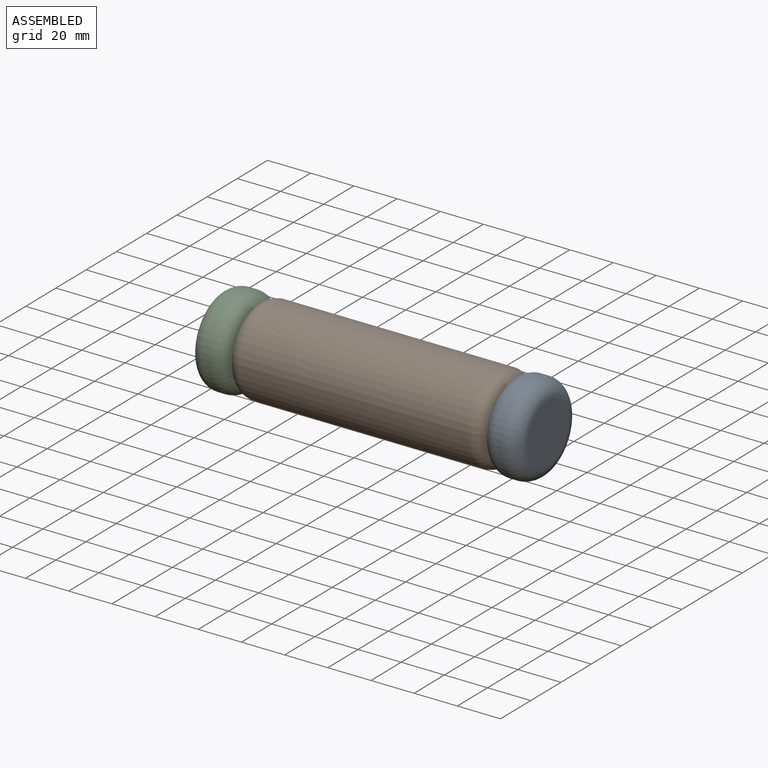
[diagram: assembled view]
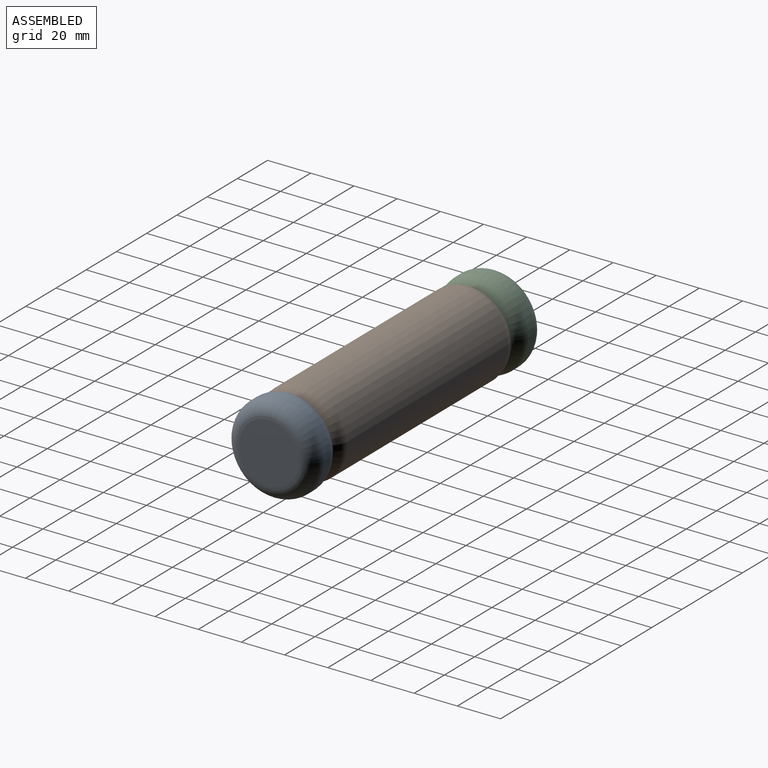
[diagram: assembled view, second angle]
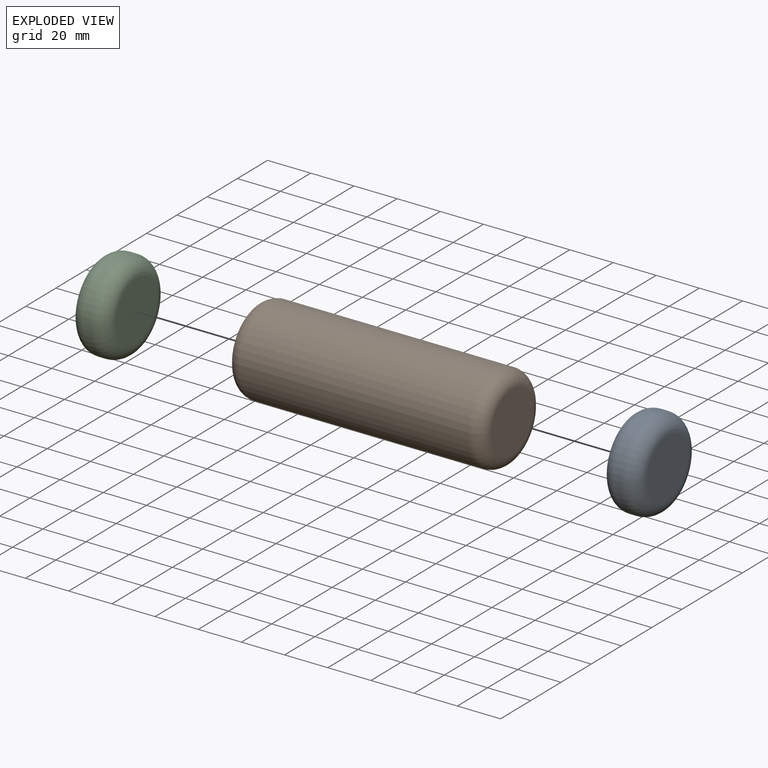
[diagram: exploded view]
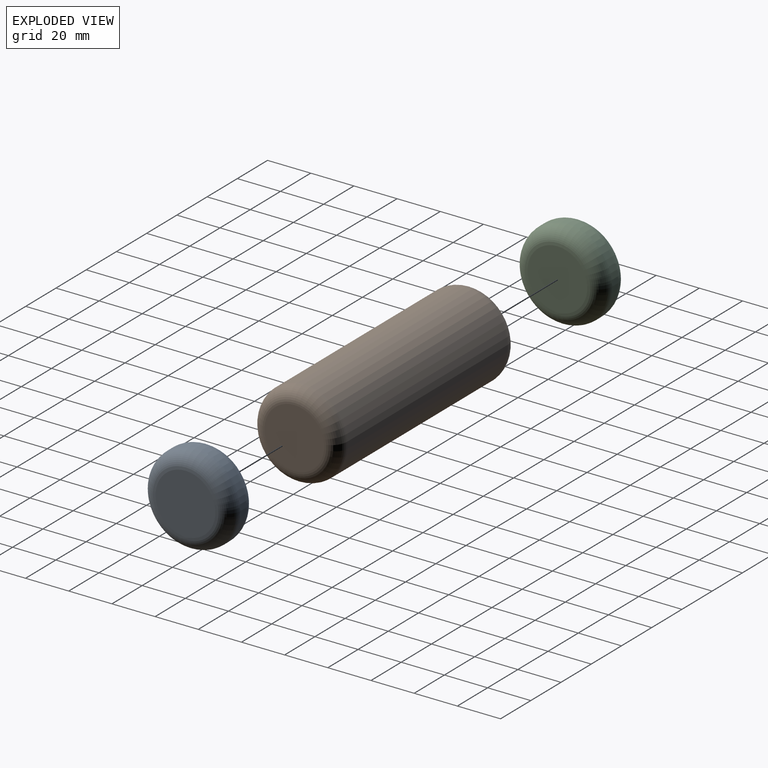
[diagram: exploded view, second angle]
ASSEMBLY  parts=3 mates=2
PART A: 5 faces, bbox 16.6x45x45 mm
  f0: plane 28.92x28.92mm, normal (-1,0,0), area 656.9mm2, adj f4
  f1: plane 27.7x27.7mm, normal (1,0,0), area 602.6mm2, adj f2
  f2: torus R=13.85mm, axis (1,0,0), area 1255.8mm2, adj f1,f3
  f3: cylinder r=20.81mm len=41.62mm, axis (1,0,0), area 431.6mm2, adj f2,f4
  f4: torus R=14.46mm, axis (1,0,0), area 1159.6mm2, adj f0,f3
PART B: 5 faces, bbox 118.6x43.7x43.7 mm
  f0: plane 27.7x27.7mm, normal (-1,0,0), area 602.6mm2, adj f4
  f1: plane 27.7x27.7mm, normal (1,0,0), area 602.6mm2, adj f2
  f2: torus R=13.85mm, axis (1,0,0), area 1121.3mm2, adj f1,f3
  f3: cylinder r=20.2mm len=105.92mm, axis (1,0,0), area 13443.4mm2, adj f2,f4
  f4: torus R=13.85mm, axis (1,0,0), area 1121.3mm2, adj f0,f3
PART C: same geometry as A
PLACE A t=(19.49,3.73,0)mm
PLACE B at identity fixed
PLACE C t=(-115.74,3.73,0)mm
MATE fastened A.f2 <-> B.f3  axis (-1,0,0) through (59.31,0,0)mm
MATE fastened C.f2 <-> B.f3  axis (1,0,0) through (-59.31,0,0)mm
